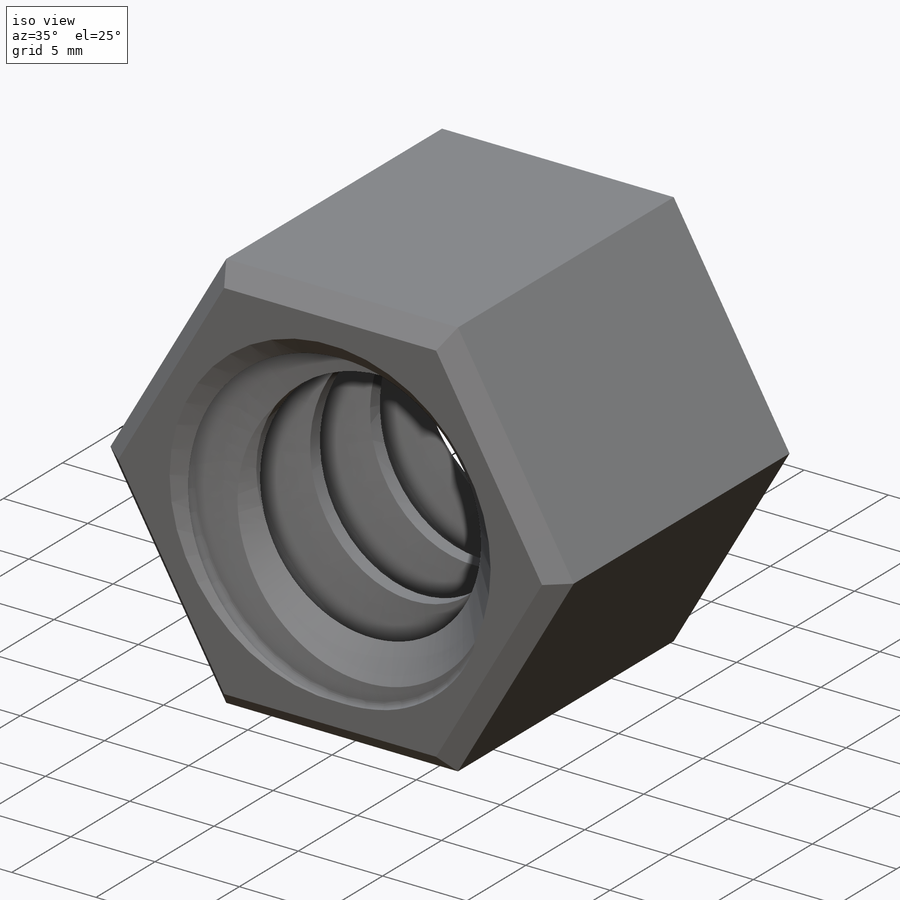
[diagram: iso view]
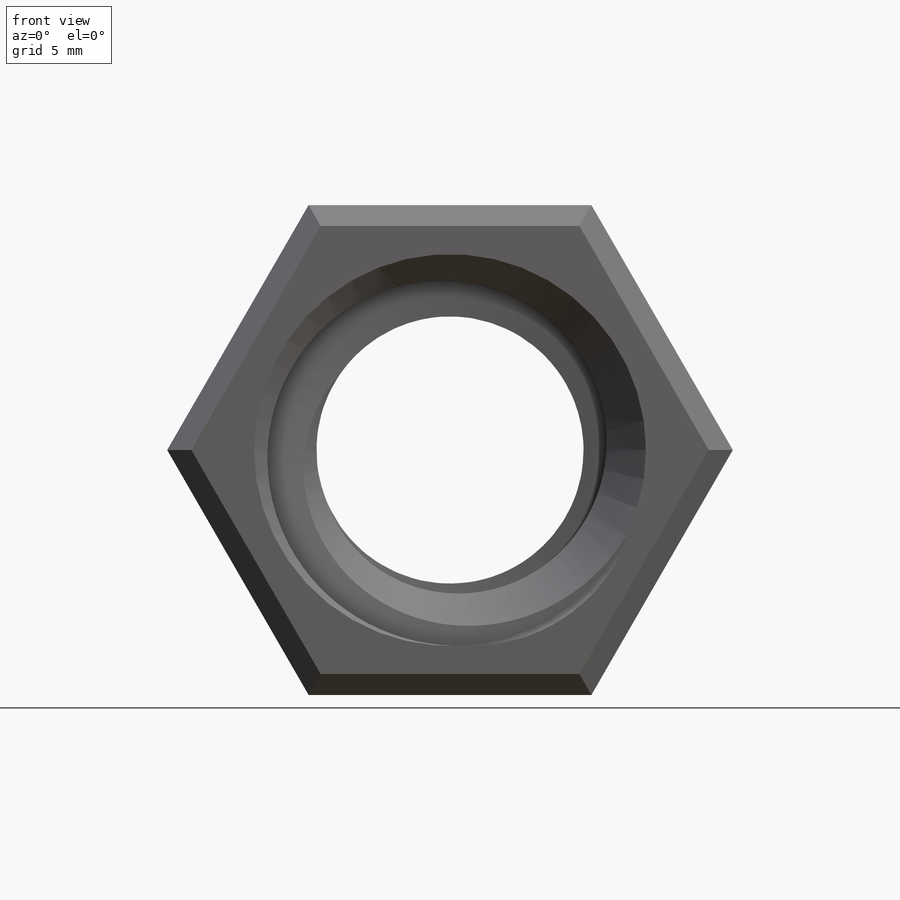
[diagram: front view]
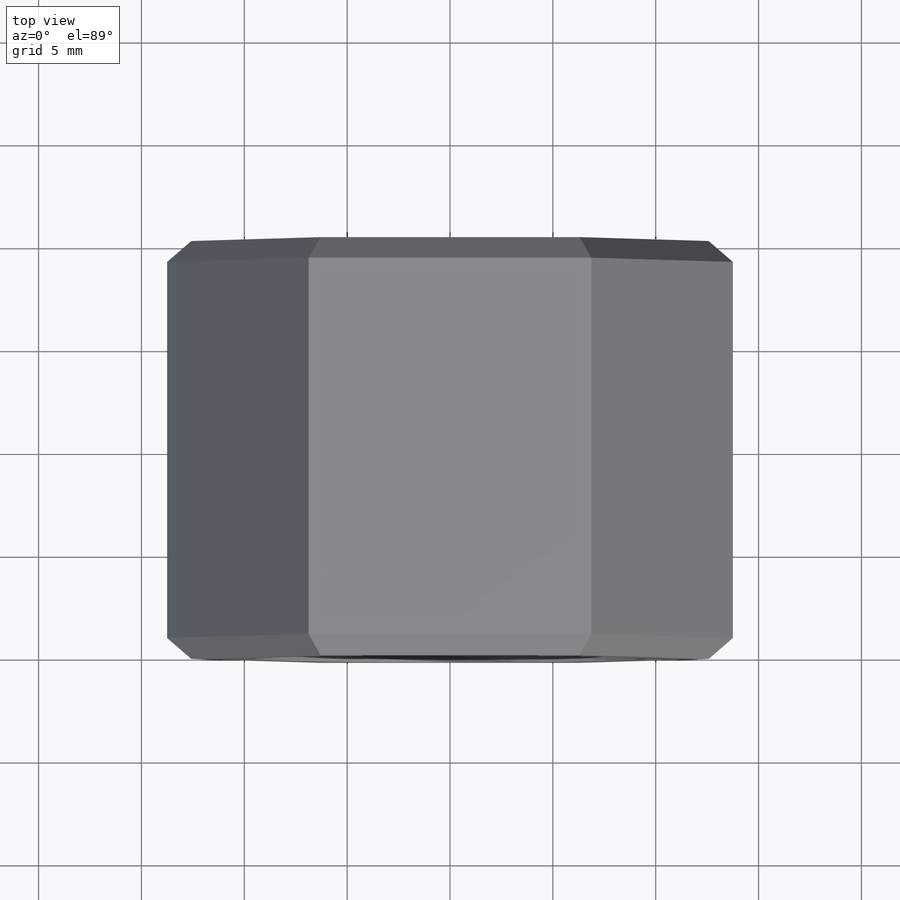
[diagram: top view]
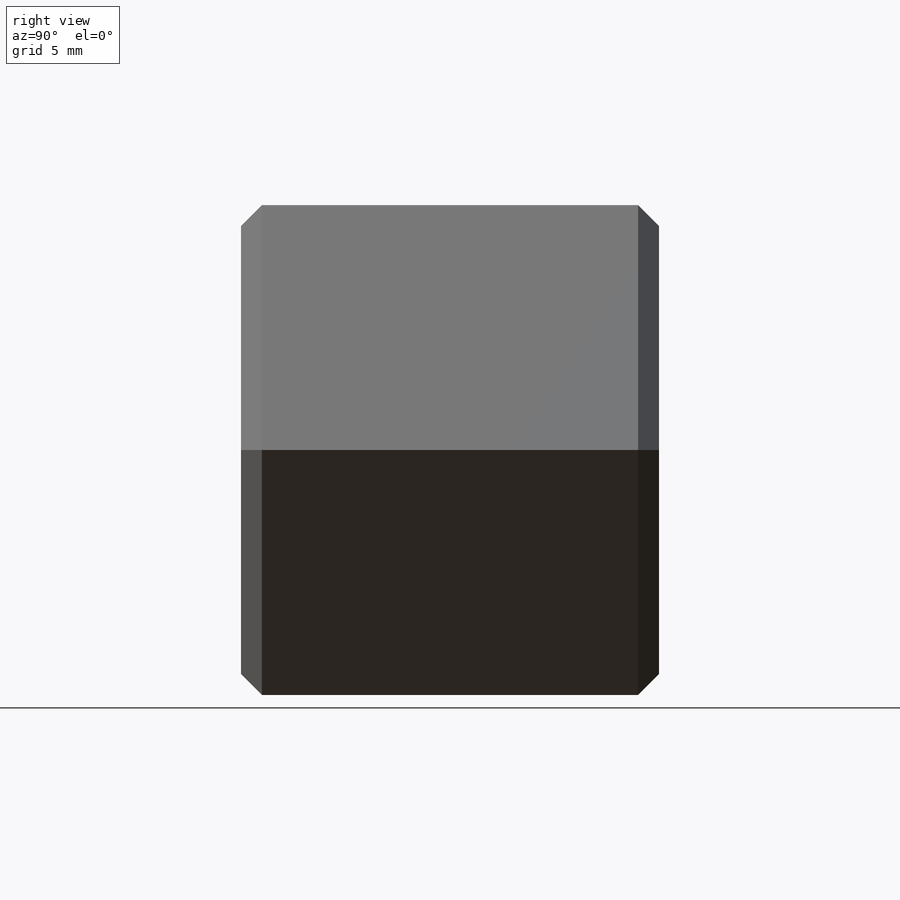
[diagram: right view]
SOLIDWORKS PART (.sldprt)
format: sldprt  version: not decoded by parser v0  size: 476,672 bytes
history: native  units: mm
features: sketch x6, cut_extrude x2, material x1, extrude x1, plane x1, helix x1, sweep x1, cut_revolve x1, chamfer x1, fillet x1 (+12 scaffold rows collapsed)
feature tree (28):
  scaffold x12  (default folders/planes/origin — collapsed)
  material  "ABS"
  sketch  "Sketch2"  dims[D1=20.32mm D2=25.4mm]
  extrude  "Boss-Extrude1"  Depth=31.75mm
  sketch  "Sketch6"  dims[D1=23.8125mm D2=~13.198227mm]
  sketch  "Sketch3"  dims[D1=13.0048mm]
  cut_extrude  "Cut-Extrude1"  [1 undecoded]
  plane  "ThreadStart"  Offset=5.08mm
  sketch  "Sketch4"
  helix  "Helix/Spiral1"  Pitch=35.56mm
  sketch  "Sketch5"  dims[c1.D4=~0.362712mm c1.D1=~1.714761mm c2.D1=7.0deg c2.D2=~1.701979mm c3.D2=45.0deg c3.D3=~3.786124mm c3.D5=13.2842mm]
  sweep  "Cut-Sweep1"
  cut_extrude  "Cut-Extrude2"  Depth=50.8mm
  sketch  "Sketch7"  dims[c1.D1=~13.086727mm c2.D1=45.0deg c2.D2=9.525mm]
  cut_revolve  "Cut-Revolve1"  Angle=360deg
  chamfer  "Chamfer1"  Distance=1.016mm Angle=45deg
  fillet  "Fillet1"  Radius=0.762mm
decode coverage: 11 of 14 modeling features carry decoded parameters
note: ~ marks probable driven/reference dimensions
note: 1 parameter value undecoded
note: suppression state not decoded; provenance and decode notes live in map.json
